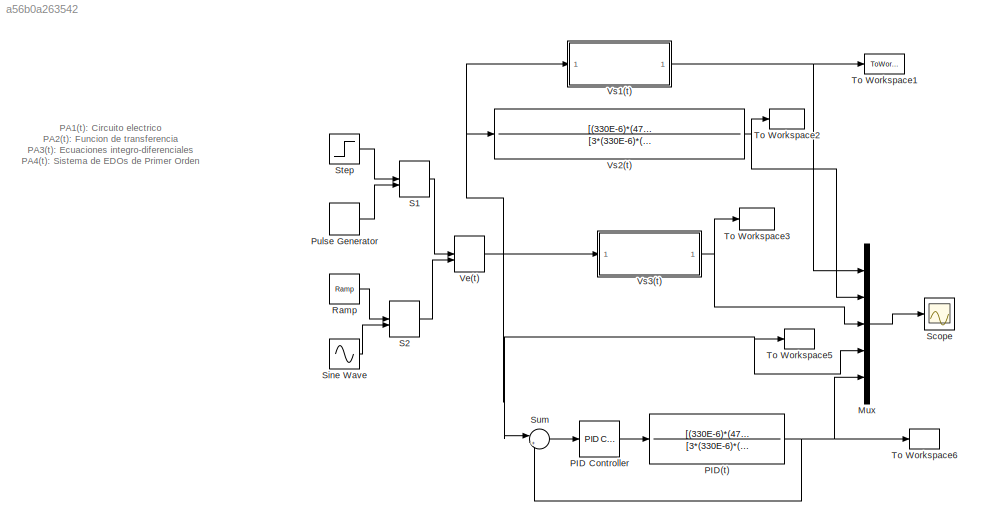
MODEL slx_a56b0a263542
KIND model
CONFIG AbsTol = auto
CONFIG EnableMultiTasking = off
CONFIG FixedStep = auto
CONFIG MaxStep = 1E-3
CONFIG MinStep = auto
CONFIG RelTol = 1e-3
CONFIG SampleTimeConstraint = Unconstrained
CONFIG SolverName = VariableStepAuto
CONFIG StartTime = 0.0
CONFIG StopTime = 10
BLOCK [Mux] Mux
  DisplayOption = bar
  Inputs = 5
BLOCK [Reference] PID Controller  REF=slpidlib/PID Controller
  LibrarySourceBlock = simulink/Continuous/PID Controller
  SourceBlock = slpidlib/PID Controller
  SourceType = PID 1dof
BLOCK [TransferFcn] PID(t)
  Denominator = [3*(330E-6)*(47E-3)*(3E3),5*(330E-6)*((3E3)^2)+47E-3,2*(3E3)]
  Numerator = [(330E-6)*(47E-3)*(3E3),(330E-6)*((3E3)^2)+47E-3,3E3]
BLOCK [DiscretePulseGenerator] Pulse Generator
  Period = 10
  PhaseDelay = 1
  PulseType = Time based
  PulseWidth = 10
BLOCK [Reference] Ramp  REF=simulink/Sources/Ramp
  SourceBlock = simulink/Sources/Ramp
  SourceType = Ramp
BLOCK [ManualSwitch] S1
  CurrentSetting = 0
BLOCK [ManualSwitch] S2
  CurrentSetting = 0
BLOCK [Scope] Scope
  ActiveDisplayYMaximum = 1.1266883261699037
  ActiveDisplayYMinimum = -0.12518759179665592
  ContainerLayout = {"WindowBounds":[-9999,1523,1362,605]}
  Floating = off
  GraphicalSettings = {"Style":{"BackgroundColor":[1,1,1],"AxesColor":[1,1,1],"LabelsColor":[0,0,0],"PreserveColors":false,"Visible":[true,true,true,true,true],"LineStyle":["-","-","-","-","--"],"LineWidth":[1.5,1.5,1.5,1.5,1.5],"BarWidth":[0.9,0.9,0.9,0.9,0.9],"LineColor":[[1,0,0],"auto","auto","auto","auto"],"LineFaceAlpha":[1,1,1,1,1],"LineEdgeAlpha":[1,1,1,1,1],"Marker":["none","none","none","none","none"],"FontSiz...<+2240ch>
  MultipleDisplayCache = [{"MaxYLimMag":1.1266883261699037,"MaxYLimReal":1.1266883261699037,"MinYLimMag":0,"MinYLimReal":-0.12518759179665592,"PlotAsMagnitudePhase":false,"ShowGrid":true,"ShowLegend":true,"Title":"%<SignalLabel>","YLabel":""}]
  NumInputPorts = 1
  ShowLegend = on
  Visible = on
  WasSavedAsWebScope = on
  WindowPosition = [1.000000,4.000000,1364.000000,608.000000,]
BLOCK [Sin] Sine Wave
  Frequency = pi/2
  SampleTime = 0
BLOCK [Step] Step
  Before = 1
  SampleTime = 0
  Time = 0
BLOCK [Sum] Sum
  Inputs = |+-
BLOCK [ToWorkspace] To Workspace1
  FixptAsFi = on
  MaxDataPoints = inf
  SampleTime = -1
  VariableName = Vs1
BLOCK [ToWorkspace] To Workspace2
  FixptAsFi = on
  MaxDataPoints = inf
  SampleTime = -1
  VariableName = Vs2
BLOCK [ToWorkspace] To Workspace3
  FixptAsFi = on
  MaxDataPoints = inf
  SampleTime = -1
  VariableName = Vs3
BLOCK [ToWorkspace] To Workspace5
  FixptAsFi = on
  MaxDataPoints = inf
  SampleTime = -1
  VariableName = Ve
BLOCK [ToWorkspace] To Workspace6
  FixptAsFi = on
  MaxDataPoints = inf
  SampleTime = -1
  VariableName = PID
BLOCK [ManualSwitch] Ve(t)
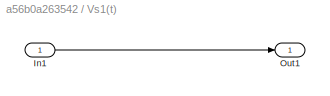
BLOCK [SubSystem] Vs1(t)
BLOCK [Inport] Vs1(t)/In1
BLOCK [Outport] Vs1(t)/Out1
BLOCK [TransferFcn] Vs2(t)
  Denominator = [3*(330E-6)*(47E-3)*(3E3),5*(330E-6)*((3E3)^2)+47E-3,2*(3E3)]
  Numerator = [(330E-6)*(47E-3)*(3E3),(330E-6)*((3E3)^2)+47E-3,3E3]
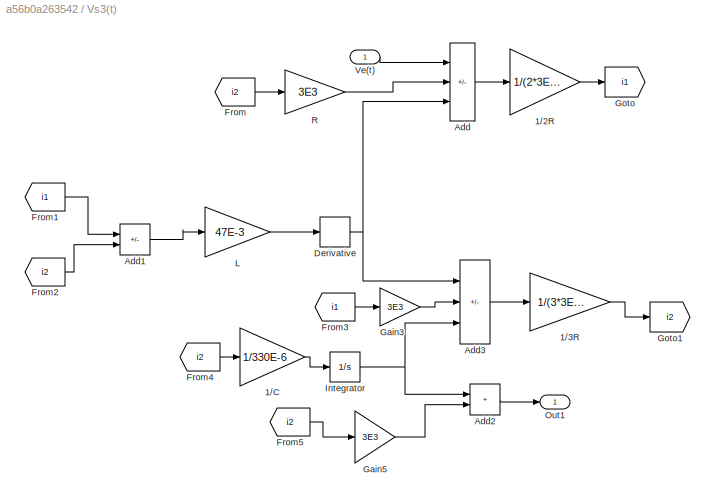
BLOCK [SubSystem] Vs3(t)
BLOCK [Gain] Vs3(t)/1//2R
  Gain = 1/(2*3E3)
BLOCK [Gain] Vs3(t)/1//3R
  Gain = 1/(3*3E3)
BLOCK [Gain] Vs3(t)/1//C
  Gain = 1/330E-6
BLOCK [Sum] Vs3(t)/Add
  IconShape = rectangular
  Inputs = ++-
BLOCK [Sum] Vs3(t)/Add1
  IconShape = rectangular
  Inputs = +-
BLOCK [Sum] Vs3(t)/Add2
  IconShape = rectangular
BLOCK [Sum] Vs3(t)/Add3
  IconShape = rectangular
  Inputs = ++-
BLOCK [Derivative] Vs3(t)/Derivative
BLOCK [From] Vs3(t)/From
  GotoTag = i2
BLOCK [From] Vs3(t)/From1
  GotoTag = i1
BLOCK [From] Vs3(t)/From2
  GotoTag = i2
BLOCK [From] Vs3(t)/From3
  GotoTag = i1
BLOCK [From] Vs3(t)/From4
  GotoTag = i2
BLOCK [From] Vs3(t)/From5
  GotoTag = i2
BLOCK [Gain] Vs3(t)/Gain3
  Gain = 3E3
BLOCK [Gain] Vs3(t)/Gain5
  Gain = 3E3
BLOCK [Goto] Vs3(t)/Goto
  GotoTag = i1
BLOCK [Goto] Vs3(t)/Goto1
  GotoTag = i2
BLOCK [Integrator] Vs3(t)/Integrator
BLOCK [Gain] Vs3(t)/L
  Gain = 47E-3
BLOCK [Outport] Vs3(t)/Out1
BLOCK [Gain] Vs3(t)/R
  Gain = 3E3
BLOCK [Inport] Vs3(t)/Ve(t)
ANNOTATION (root): PA1(t): Circuito electrico PA2(t): Funcion de transferencia PA3(t): Ecuaciones integro-diferenciales PA4(t): Sistema de EDOs de Primer Orden
LINE Mux:1 -> Scope:1
LINE PID Controller:1 -> PID(t):1
NET PID(t):1 -> Mux:5, Sum:2, To Workspace6:1
LINE Pulse Generator:1 -> S1:2
LINE Ramp:1 -> S2:1
LINE S1:1 -> Ve(t):1
LINE S2:1 -> Ve(t):2
LINE Sine Wave:1 -> S2:2
LINE Step:1 -> S1:1
LINE Sum:1 -> PID Controller:1
NET Ve(t):1 -> Mux:4, Sum:1, To Workspace5:1, Vs1(t):1, Vs2(t):1, Vs3(t):1
LINE Vs1(t)/In1:1 -> Vs1(t)/Out1:1
NET Vs1(t):1 -> Mux:1, To Workspace1:1
NET Vs2(t):1 -> Mux:2, To Workspace2:1
LINE Vs3(t)/1//2R:1 -> Vs3(t)/Goto:1
LINE Vs3(t)/1//3R:1 -> Vs3(t)/Goto1:1
LINE Vs3(t)/1//C:1 -> Vs3(t)/Integrator:1
LINE Vs3(t)/Add1:1 -> Vs3(t)/L:1
LINE Vs3(t)/Add2:1 -> Vs3(t)/Out1:1
LINE Vs3(t)/Add3:1 -> Vs3(t)/1//3R:1
LINE Vs3(t)/Add:1 -> Vs3(t)/1//2R:1
NET Vs3(t)/Derivative:1 -> Vs3(t)/Add3:1, Vs3(t)/Add:3
LINE Vs3(t)/From1:1 -> Vs3(t)/Add1:1
LINE Vs3(t)/From2:1 -> Vs3(t)/Add1:2
LINE Vs3(t)/From3:1 -> Vs3(t)/Gain3:1
LINE Vs3(t)/From4:1 -> Vs3(t)/1//C:1
LINE Vs3(t)/From5:1 -> Vs3(t)/Gain5:1
LINE Vs3(t)/From:1 -> Vs3(t)/R:1
LINE Vs3(t)/Gain3:1 -> Vs3(t)/Add3:2
LINE Vs3(t)/Gain5:1 -> Vs3(t)/Add2:2
NET Vs3(t)/Integrator:1 -> Vs3(t)/Add2:1, Vs3(t)/Add3:3
LINE Vs3(t)/L:1 -> Vs3(t)/Derivative:1
LINE Vs3(t)/R:1 -> Vs3(t)/Add:2
LINE Vs3(t)/Ve(t):1 -> Vs3(t)/Add:1
NET Vs3(t):1 -> Mux:3, To Workspace3:1
note: NET lines group one-source signal fan-out (src -> all destinations, sorted); 1:1 wires keep LINE
